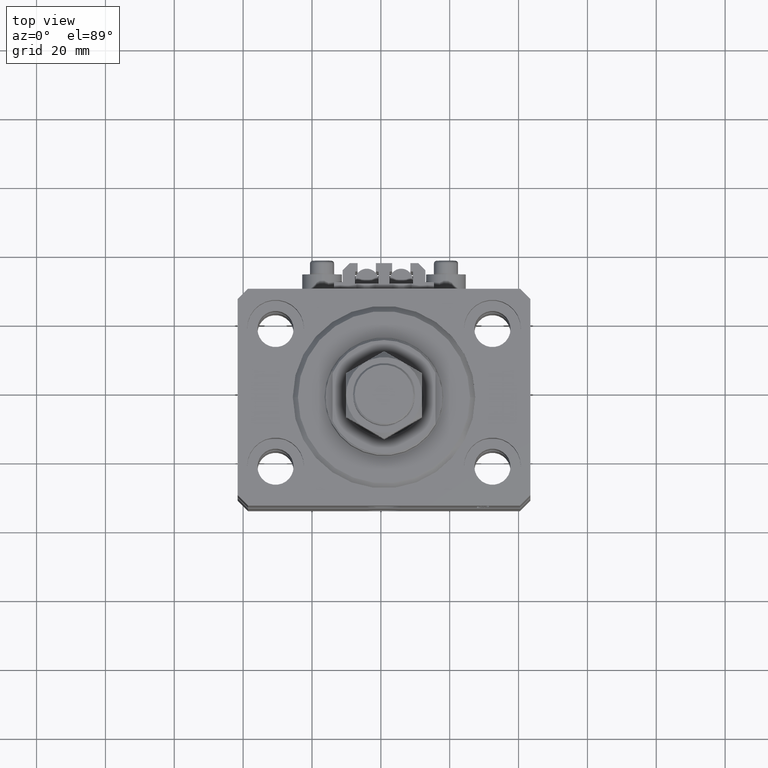
[diagram: clean part render]
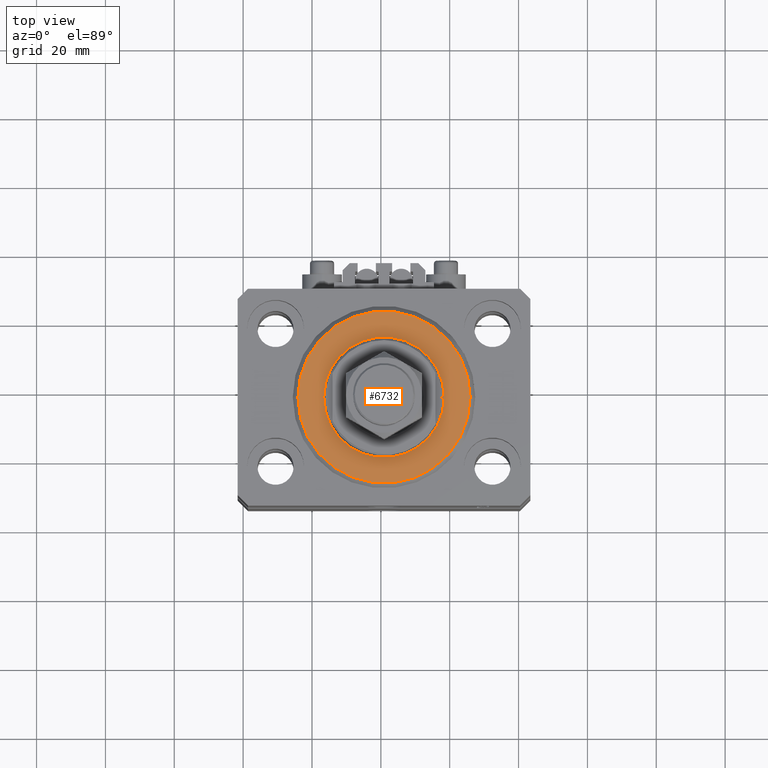
[diagram: same view with one face highlighted and labeled with its STEP entity id]
A machine part, top view. The second image highlights one B-rep face of the part: STEP entity #6732.
In plain terms, the highlighted planar face has unit normal (0, 0, -1).
Its self-contained STEP definition (entity closure, byte-faithful):
#730 = AXIS2_PLACEMENT_3D ( 'NONE', #26642, #6627, #30705 ) ;
#2111 = CARTESIAN_POINT ( 'NONE',  ( 0.000000000000000000, 0.000000000000000000, 0.000000000000000000 ) ) ;
#3002 = AXIS2_PLACEMENT_3D ( 'NONE', #40837, #6125, #33253 ) ;
#3382 = EDGE_CURVE ( 'NONE', #15445, #8834, #24864, .T. ) ;
#4582 = AXIS2_PLACEMENT_3D ( 'NONE', #38834, #5538, #36961 ) ;
#5102 = DIRECTION ( 'NONE',  ( 0.000000000000000000, 0.000000000000000000, 1.000000000000000000 ) ) ;
#5160 = CIRCLE ( 'NONE', #29439, 24.99999999999995026 ) ;
#5343 = DIRECTION ( 'NONE',  ( 1.000000000000000000, 0.000000000000000000, 0.000000000000000000 ) ) ;
#5538 = DIRECTION ( 'NONE',  ( -0.000000000000000000, -0.000000000000000000, -1.000000000000000000 ) ) ;
#6125 = DIRECTION ( 'NONE',  ( 0.000000000000000000, 0.000000000000000000, 1.000000000000000000 ) ) ;
#6627 = DIRECTION ( 'NONE',  ( 0.000000000000000000, 0.000000000000000000, 1.000000000000000000 ) ) ;
#6732 = ADVANCED_FACE ( 'NONE', ( #19025, #33493 ), #37780, .F. ) ;
#8834 = VERTEX_POINT ( 'NONE', #22347 ) ;
#9981 = DIRECTION ( 'NONE',  ( 1.000000000000000000, 0.000000000000000000, 0.000000000000000000 ) ) ;
#11172 = ORIENTED_EDGE ( 'NONE', *, *, #33733, .T. ) ;
#13016 = EDGE_LOOP ( 'NONE', ( #48901, #38799 ) ) ;
#14804 = CARTESIAN_POINT ( 'NONE',  ( -24.99999999999995026, 3.153465507804431248E-15, 0.000000000000000000 ) ) ;
#15445 = VERTEX_POINT ( 'NONE', #21043 ) ;
#17834 = EDGE_CURVE ( 'NONE', #29101, #40050, #5160, .T. ) ;
#19025 = FACE_BOUND ( 'NONE', #13016, .T. ) ;
#21043 = CARTESIAN_POINT ( 'NONE',  ( 17.50000000000000000, 0.000000000000000000, 2.168404344971008868E-16 ) ) ;
#22128 = DIRECTION ( 'NONE',  ( -0.000000000000000000, -0.000000000000000000, -1.000000000000000000 ) ) ;
#22347 = CARTESIAN_POINT ( 'NONE',  ( -17.50000000000000000, 2.143131898507868643E-15, 2.168404344971008868E-16 ) ) ;
#23496 = AXIS2_PLACEMENT_3D ( 'NONE', #36518, #5102, #5343 ) ;
#24864 = CIRCLE ( 'NONE', #3002, 17.50000000000000000 ) ;
#26642 = CARTESIAN_POINT ( 'NONE',  ( 0.000000000000000000, 0.000000000000000000, 0.000000000000000000 ) ) ;
#29101 = VERTEX_POINT ( 'NONE', #44685 ) ;
#29439 = AXIS2_PLACEMENT_3D ( 'NONE', #2111, #22128, #9981 ) ;
#30705 = DIRECTION ( 'NONE',  ( 1.000000000000000000, 0.000000000000000000, -0.000000000000000000 ) ) ;
#33253 = DIRECTION ( 'NONE',  ( 1.000000000000000000, 0.000000000000000000, 0.000000000000000000 ) ) ;
#33493 = FACE_OUTER_BOUND ( 'NONE', #35522, .T. ) ;
#33733 = EDGE_CURVE ( 'NONE', #40050, #29101, #48253, .T. ) ;
#35354 = ORIENTED_EDGE ( 'NONE', *, *, #17834, .T. ) ;
#35522 = EDGE_LOOP ( 'NONE', ( #35354, #11172 ) ) ;
#36518 = CARTESIAN_POINT ( 'NONE',  ( 0.000000000000000000, 0.000000000000000000, 0.000000000000000000 ) ) ;
#36961 = DIRECTION ( 'NONE',  ( 1.000000000000000000, 0.000000000000000000, 0.000000000000000000 ) ) ;
#37780 = PLANE ( 'NONE',  #730 ) ;
#38073 = CIRCLE ( 'NONE', #23496, 17.50000000000000000 ) ;
#38799 = ORIENTED_EDGE ( 'NONE', *, *, #44825, .T. ) ;
#38834 = CARTESIAN_POINT ( 'NONE',  ( 0.000000000000000000, 0.000000000000000000, 0.000000000000000000 ) ) ;
#40050 = VERTEX_POINT ( 'NONE', #14804 ) ;
#40837 = CARTESIAN_POINT ( 'NONE',  ( 0.000000000000000000, 0.000000000000000000, 0.000000000000000000 ) ) ;
#44685 = CARTESIAN_POINT ( 'NONE',  ( 24.99999999999995026, 0.000000000000000000, 0.000000000000000000 ) ) ;
#44825 = EDGE_CURVE ( 'NONE', #8834, #15445, #38073, .T. ) ;
#48253 = CIRCLE ( 'NONE', #4582, 24.99999999999995026 ) ;
#48901 = ORIENTED_EDGE ( 'NONE', *, *, #3382, .T. ) ;